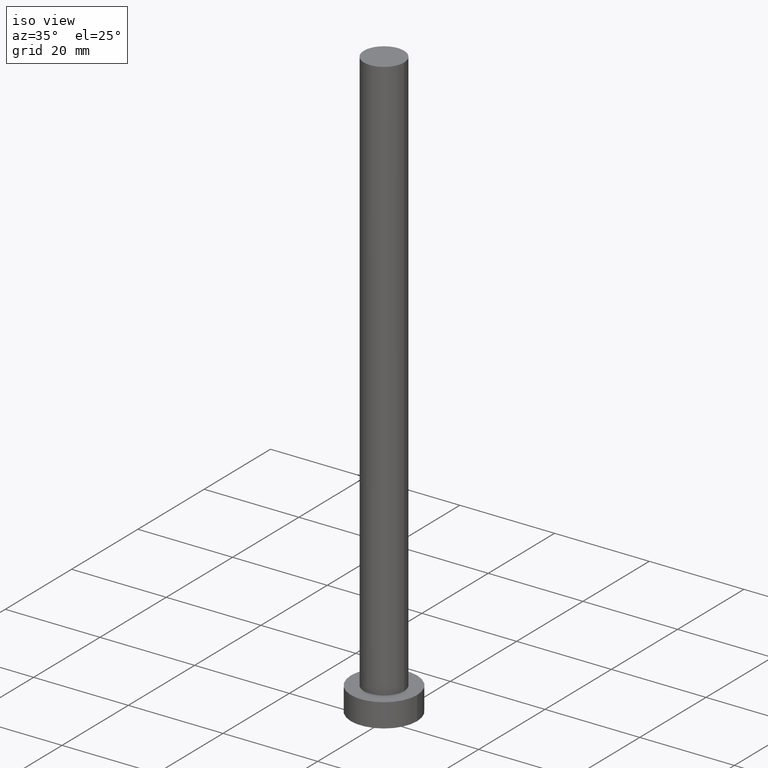
[diagram: clean part render]
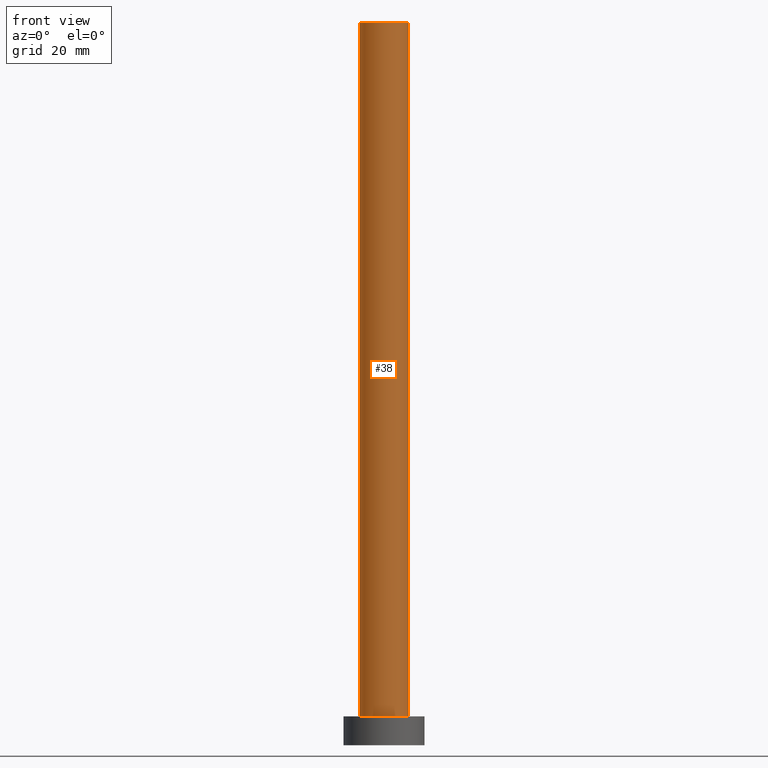
[diagram: tour spotlight — one face highlighted and labeled with its STEP entity id]
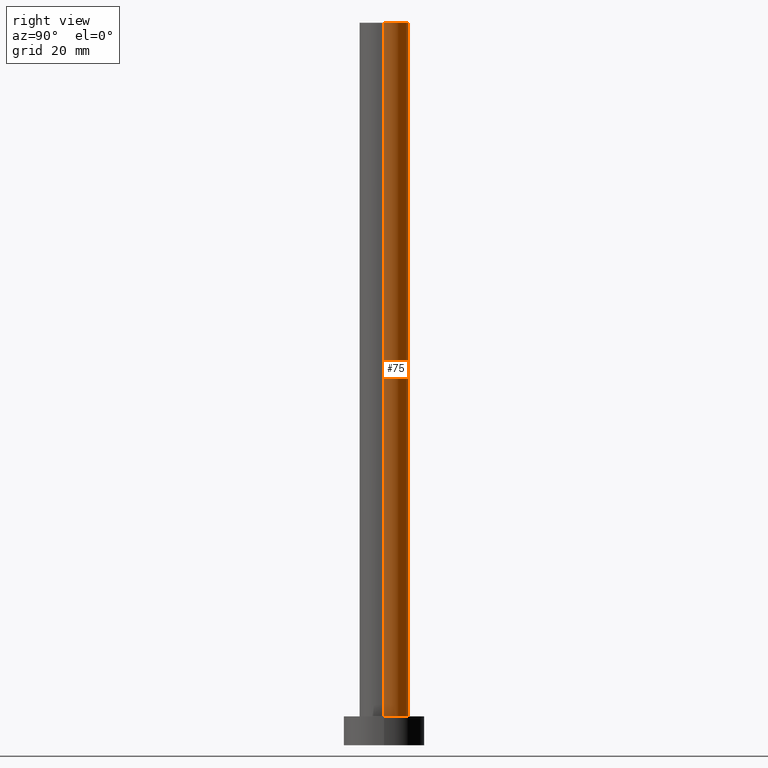
[diagram: tour spotlight — one face highlighted and labeled with its STEP entity id]
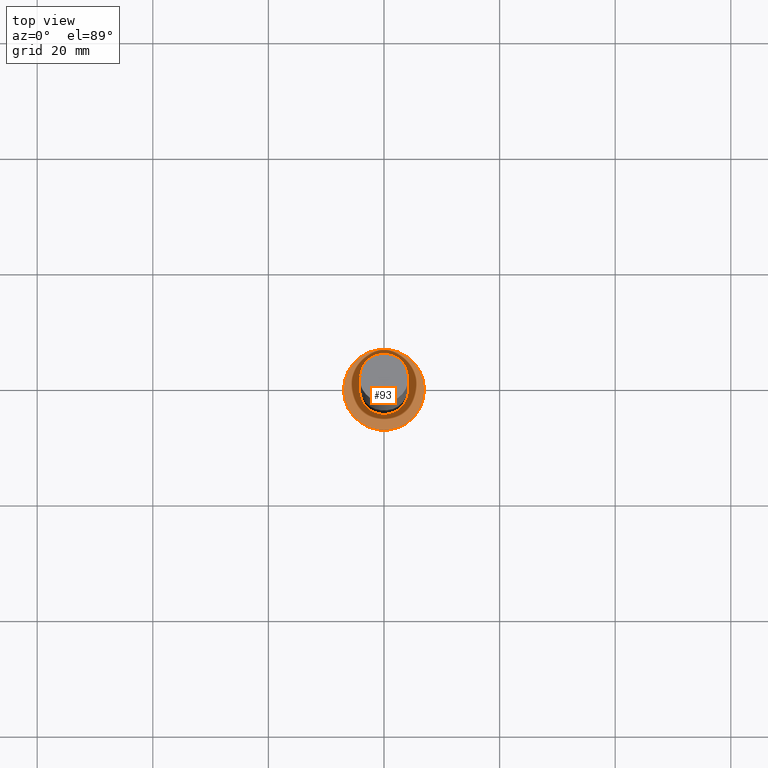
[diagram: tour spotlight — one face highlighted and labeled with its STEP entity id]
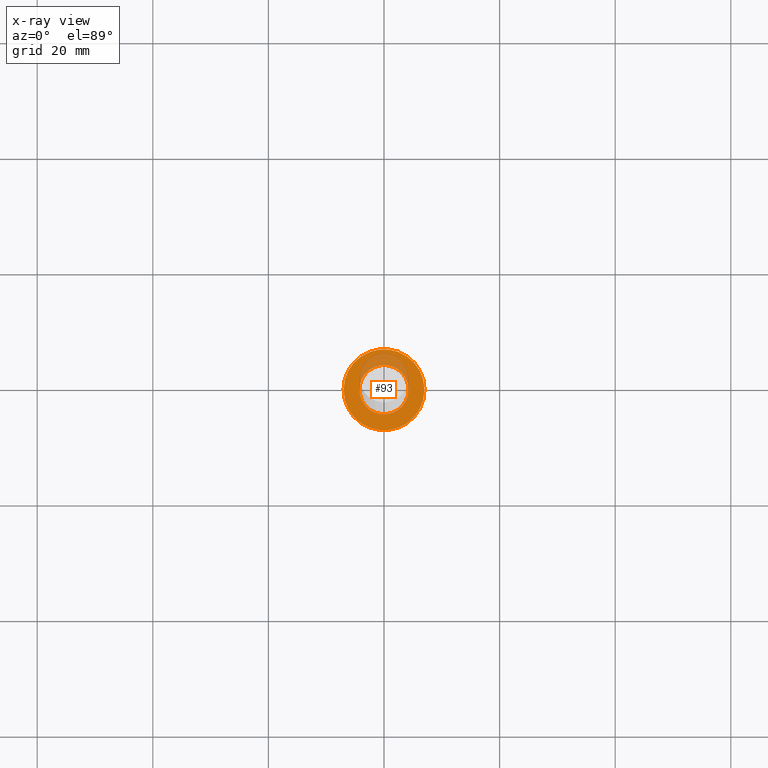
[diagram: x-ray of the same camera — body ghosted, this tour face saturated]
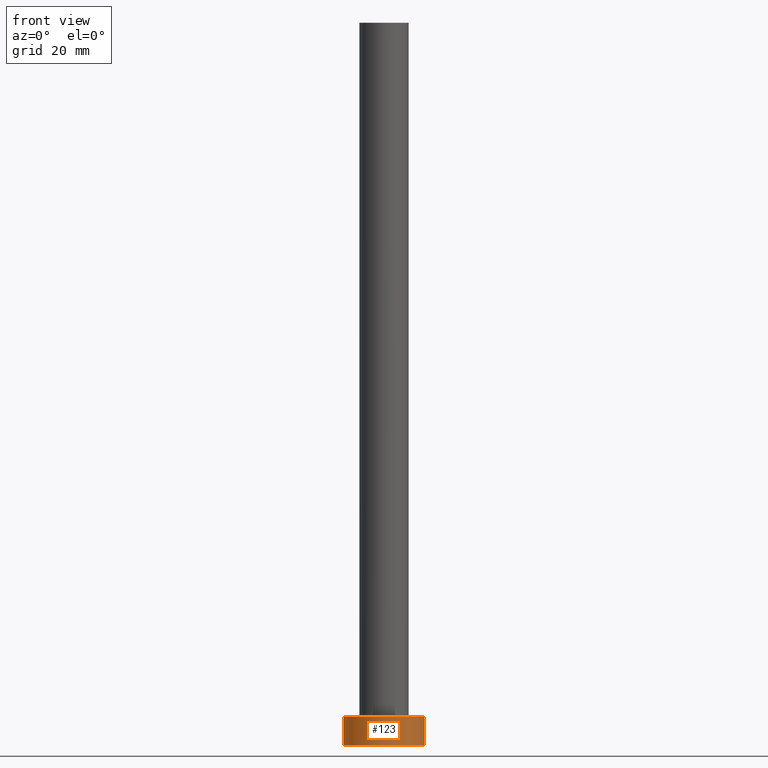
[diagram: tour spotlight — one face highlighted and labeled with its STEP entity id]
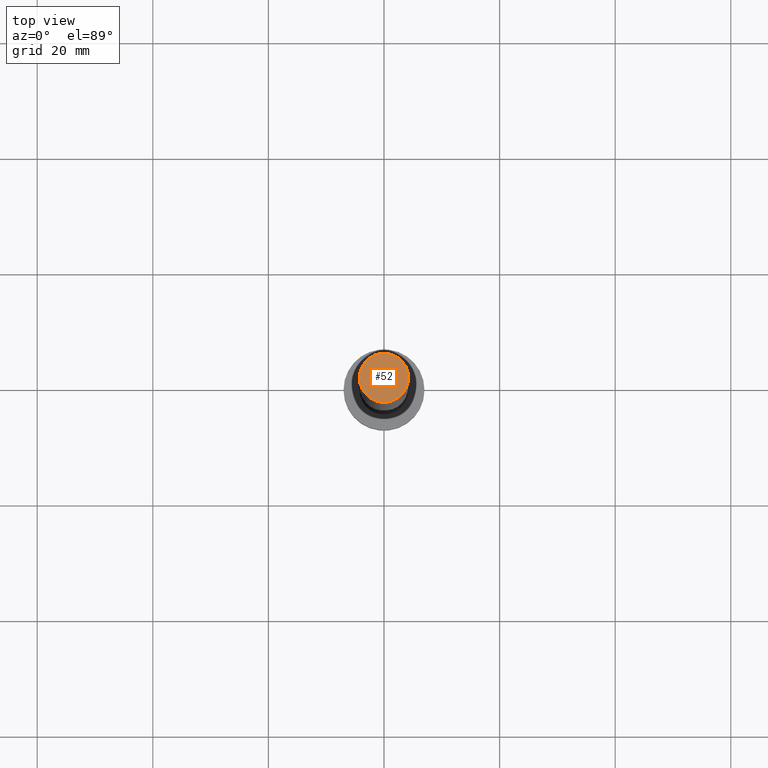
[diagram: tour spotlight — one face highlighted and labeled with its STEP entity id]
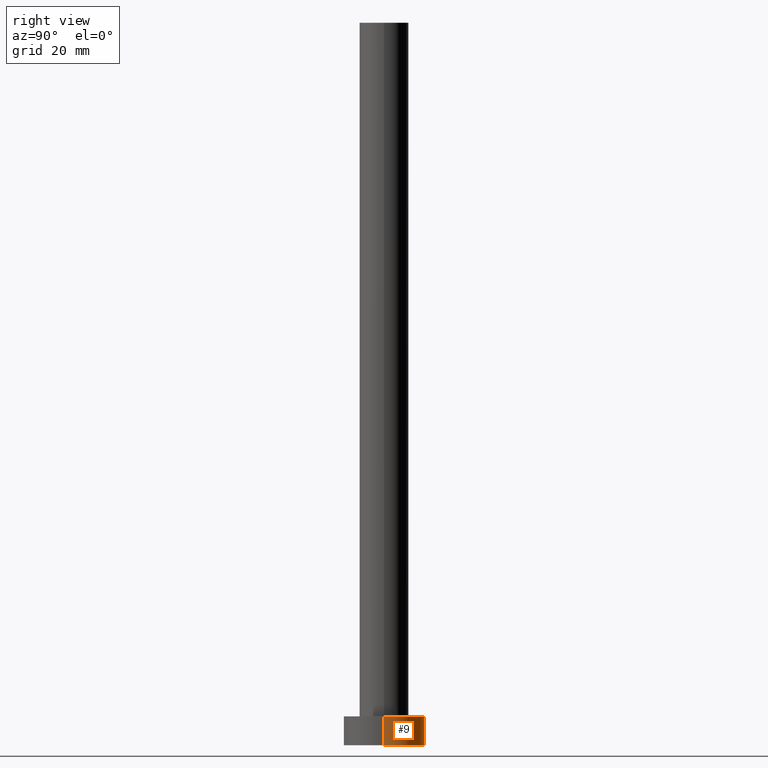
[diagram: tour spotlight — one face highlighted and labeled with its STEP entity id]
A machine part: a face-by-face anatomy tour. The part has 7 B-rep faces; the first image is the clean iso view, then the 6 largest visible faces are spotlighted one at a time (largest first), each with its STEP entity span.

Face 1 — front view, entity #38. In plain terms, the highlighted cylindrical surface (edge-blend (fillet) strip) has radius 4.25 mm, axis along (-0, -0, -1).
Definition (entity closure, byte-faithful):
#3 = EDGE_CURVE ( 'NONE', #116, #118, #183, .T. ) ;
#21 = DIRECTION ( 'NONE',  ( 0.000000000000000000, 0.000000000000000000, 1.000000000000000000 ) ) ;
#24 = CARTESIAN_POINT ( 'NONE',  ( 4.250000000000000000, 5.204748896376250699E-16, 5.000000000000000000 ) ) ;
#38 = ADVANCED_FACE ( 'NONE', ( #95 ), #207, .T. ) ;
#41 = VERTEX_POINT ( 'NONE', #153 ) ;
#43 = ORIENTED_EDGE ( 'NONE', *, *, #247, .T. ) ;
#44 = CARTESIAN_POINT ( 'NONE',  ( 0.000000000000000000, 0.000000000000000000, 5.000000000000000000 ) ) ;
#49 = CARTESIAN_POINT ( 'NONE',  ( -4.250000000000000000, 0.000000000000000000, 125.0000000000000000 ) ) ;
#58 = ORIENTED_EDGE ( 'NONE', *, *, #3, .F. ) ;
#71 = LINE ( 'NONE', #49, #143 ) ;
#78 = DIRECTION ( 'NONE',  ( -0.000000000000000000, -0.000000000000000000, -1.000000000000000000 ) ) ;
#80 = EDGE_CURVE ( 'NONE', #41, #208, #71, .T. ) ;
#85 = ORIENTED_EDGE ( 'NONE', *, *, #80, .T. ) ;
#95 = FACE_OUTER_BOUND ( 'NONE', #225, .T. ) ;
#97 = CARTESIAN_POINT ( 'NONE',  ( 0.000000000000000000, 0.000000000000000000, 125.0000000000000000 ) ) ;
#116 = VERTEX_POINT ( 'NONE', #119 ) ;
#118 = VERTEX_POINT ( 'NONE', #24 ) ;
#119 = CARTESIAN_POINT ( 'NONE',  ( 4.250000000000000000, 5.204748896376250699E-16, 125.0000000000000000 ) ) ;
#132 = AXIS2_PLACEMENT_3D ( 'NONE', #177, #78, #135 ) ;
#135 = DIRECTION ( 'NONE',  ( -1.000000000000000000, 0.000000000000000000, 0.000000000000000000 ) ) ;
#137 = DIRECTION ( 'NONE',  ( 1.000000000000000000, 0.000000000000000000, 0.000000000000000000 ) ) ;
#138 = ORIENTED_EDGE ( 'NONE', *, *, #195, .F. ) ;
#143 = VECTOR ( 'NONE', #162, 1000.000000000000000 ) ;
#153 = CARTESIAN_POINT ( 'NONE',  ( -4.250000000000000000, 0.000000000000000000, 125.0000000000000000 ) ) ;
#162 = DIRECTION ( 'NONE',  ( -0.000000000000000000, -0.000000000000000000, -1.000000000000000000 ) ) ;
#177 = CARTESIAN_POINT ( 'NONE',  ( 0.000000000000000000, 0.000000000000000000, 125.0000000000000000 ) ) ;
#181 = CIRCLE ( 'NONE', #222, 4.250000000000000000 ) ;
#183 = LINE ( 'NONE', #245, #221 ) ;
#191 = DIRECTION ( 'NONE',  ( 1.000000000000000000, 0.000000000000000000, 0.000000000000000000 ) ) ;
#195 = EDGE_CURVE ( 'NONE', #41, #116, #197, .T. ) ;
#197 = CIRCLE ( 'NONE', #209, 4.250000000000000000 ) ;
#207 = CYLINDRICAL_SURFACE ( 'NONE', #132, 4.250000000000000000 ) ;
#208 = VERTEX_POINT ( 'NONE', #229 ) ;
#209 = AXIS2_PLACEMENT_3D ( 'NONE', #97, #21, #137 ) ;
#221 = VECTOR ( 'NONE', #240, 1000.000000000000000 ) ;
#222 = AXIS2_PLACEMENT_3D ( 'NONE', #44, #236, #191 ) ;
#225 = EDGE_LOOP ( 'NONE', ( #58, #138, #85, #43 ) ) ;
#229 = CARTESIAN_POINT ( 'NONE',  ( -4.250000000000000000, 0.000000000000000000, 5.000000000000000000 ) ) ;
#236 = DIRECTION ( 'NONE',  ( 0.000000000000000000, 0.000000000000000000, 1.000000000000000000 ) ) ;
#240 = DIRECTION ( 'NONE',  ( -0.000000000000000000, -0.000000000000000000, -1.000000000000000000 ) ) ;
#245 = CARTESIAN_POINT ( 'NONE',  ( 4.250000000000000000, 5.204748896376250699E-16, 125.0000000000000000 ) ) ;
#247 = EDGE_CURVE ( 'NONE', #208, #118, #181, .T. ) ;

Face 2 — right view, entity #75. In plain terms, the highlighted cylindrical surface (edge-blend (fillet) strip) has radius 4.25 mm, axis along (-0, -0, -1).
Definition (entity closure, byte-faithful):
#3 = EDGE_CURVE ( 'NONE', #116, #118, #183, .T. ) ;
#14 = CARTESIAN_POINT ( 'NONE',  ( 0.000000000000000000, 0.000000000000000000, 125.0000000000000000 ) ) ;
#19 = CIRCLE ( 'NONE', #150, 4.250000000000000000 ) ;
#24 = CARTESIAN_POINT ( 'NONE',  ( 4.250000000000000000, 5.204748896376250699E-16, 5.000000000000000000 ) ) ;
#41 = VERTEX_POINT ( 'NONE', #153 ) ;
#49 = CARTESIAN_POINT ( 'NONE',  ( -4.250000000000000000, 0.000000000000000000, 125.0000000000000000 ) ) ;
#63 = ORIENTED_EDGE ( 'NONE', *, *, #169, .F. ) ;
#66 = EDGE_LOOP ( 'NONE', ( #63, #160, #232, #142 ) ) ;
#71 = LINE ( 'NONE', #49, #143 ) ;
#75 = ADVANCED_FACE ( 'NONE', ( #125 ), #211, .T. ) ;
#80 = EDGE_CURVE ( 'NONE', #41, #208, #71, .T. ) ;
#86 = EDGE_CURVE ( 'NONE', #118, #208, #127, .T. ) ;
#87 = DIRECTION ( 'NONE',  ( -0.000000000000000000, -0.000000000000000000, -1.000000000000000000 ) ) ;
#109 = CARTESIAN_POINT ( 'NONE',  ( 0.000000000000000000, 0.000000000000000000, 5.000000000000000000 ) ) ;
#116 = VERTEX_POINT ( 'NONE', #119 ) ;
#118 = VERTEX_POINT ( 'NONE', #24 ) ;
#119 = CARTESIAN_POINT ( 'NONE',  ( 4.250000000000000000, 5.204748896376250699E-16, 125.0000000000000000 ) ) ;
#125 = FACE_OUTER_BOUND ( 'NONE', #66, .T. ) ;
#127 = CIRCLE ( 'NONE', #147, 4.250000000000000000 ) ;
#142 = ORIENTED_EDGE ( 'NONE', *, *, #80, .F. ) ;
#143 = VECTOR ( 'NONE', #162, 1000.000000000000000 ) ;
#147 = AXIS2_PLACEMENT_3D ( 'NONE', #109, #167, #253 ) ;
#150 = AXIS2_PLACEMENT_3D ( 'NONE', #156, #230, #239 ) ;
#153 = CARTESIAN_POINT ( 'NONE',  ( -4.250000000000000000, 0.000000000000000000, 125.0000000000000000 ) ) ;
#156 = CARTESIAN_POINT ( 'NONE',  ( 0.000000000000000000, 0.000000000000000000, 125.0000000000000000 ) ) ;
#160 = ORIENTED_EDGE ( 'NONE', *, *, #3, .T. ) ;
#162 = DIRECTION ( 'NONE',  ( -0.000000000000000000, -0.000000000000000000, -1.000000000000000000 ) ) ;
#167 = DIRECTION ( 'NONE',  ( 0.000000000000000000, 0.000000000000000000, 1.000000000000000000 ) ) ;
#169 = EDGE_CURVE ( 'NONE', #116, #41, #19, .T. ) ;
#183 = LINE ( 'NONE', #245, #221 ) ;
#194 = DIRECTION ( 'NONE',  ( -1.000000000000000000, 0.000000000000000000, 0.000000000000000000 ) ) ;
#208 = VERTEX_POINT ( 'NONE', #229 ) ;
#211 = CYLINDRICAL_SURFACE ( 'NONE', #217, 4.250000000000000000 ) ;
#217 = AXIS2_PLACEMENT_3D ( 'NONE', #14, #87, #194 ) ;
#221 = VECTOR ( 'NONE', #240, 1000.000000000000000 ) ;
#229 = CARTESIAN_POINT ( 'NONE',  ( -4.250000000000000000, 0.000000000000000000, 5.000000000000000000 ) ) ;
#230 = DIRECTION ( 'NONE',  ( 0.000000000000000000, 0.000000000000000000, 1.000000000000000000 ) ) ;
#232 = ORIENTED_EDGE ( 'NONE', *, *, #86, .T. ) ;
#239 = DIRECTION ( 'NONE',  ( 1.000000000000000000, 0.000000000000000000, 0.000000000000000000 ) ) ;
#240 = DIRECTION ( 'NONE',  ( -0.000000000000000000, -0.000000000000000000, -1.000000000000000000 ) ) ;
#245 = CARTESIAN_POINT ( 'NONE',  ( 4.250000000000000000, 5.204748896376250699E-16, 125.0000000000000000 ) ) ;
#253 = DIRECTION ( 'NONE',  ( 1.000000000000000000, 0.000000000000000000, 0.000000000000000000 ) ) ;

Face 3 — top view, entity #93. An x-ray twin of the same camera follows (body ghosted, this face saturated) — the face is partly hidden behind the body. In plain terms, the highlighted planar face has unit normal (0, 0, 1).
Definition (entity closure, byte-faithful):
#4 = CARTESIAN_POINT ( 'NONE',  ( 0.000000000000000000, 0.000000000000000000, 5.000000000000000000 ) ) ;
#8 = EDGE_LOOP ( 'NONE', ( #154, #141 ) ) ;
#23 = ORIENTED_EDGE ( 'NONE', *, *, #247, .F. ) ;
#24 = CARTESIAN_POINT ( 'NONE',  ( 4.250000000000000000, 5.204748896376250699E-16, 5.000000000000000000 ) ) ;
#29 = FACE_BOUND ( 'NONE', #151, .T. ) ;
#35 = AXIS2_PLACEMENT_3D ( 'NONE', #4, #77, #178 ) ;
#42 = DIRECTION ( 'NONE',  ( 1.000000000000000000, 0.000000000000000000, 0.000000000000000000 ) ) ;
#44 = CARTESIAN_POINT ( 'NONE',  ( 0.000000000000000000, 0.000000000000000000, 5.000000000000000000 ) ) ;
#46 = FACE_OUTER_BOUND ( 'NONE', #8, .T. ) ;
#47 = AXIS2_PLACEMENT_3D ( 'NONE', #175, #62, #224 ) ;
#54 = CIRCLE ( 'NONE', #47, 7.000000000000000000 ) ;
#62 = DIRECTION ( 'NONE',  ( 0.000000000000000000, 0.000000000000000000, 1.000000000000000000 ) ) ;
#72 = AXIS2_PLACEMENT_3D ( 'NONE', #227, #179, #42 ) ;
#77 = DIRECTION ( 'NONE',  ( 0.000000000000000000, 0.000000000000000000, 1.000000000000000000 ) ) ;
#86 = EDGE_CURVE ( 'NONE', #118, #208, #127, .T. ) ;
#93 = ADVANCED_FACE ( 'NONE', ( #29, #46 ), #188, .T. ) ;
#109 = CARTESIAN_POINT ( 'NONE',  ( 0.000000000000000000, 0.000000000000000000, 5.000000000000000000 ) ) ;
#118 = VERTEX_POINT ( 'NONE', #24 ) ;
#127 = CIRCLE ( 'NONE', #147, 4.250000000000000000 ) ;
#141 = ORIENTED_EDGE ( 'NONE', *, *, #203, .T. ) ;
#147 = AXIS2_PLACEMENT_3D ( 'NONE', #109, #167, #253 ) ;
#151 = EDGE_LOOP ( 'NONE', ( #23, #186 ) ) ;
#154 = ORIENTED_EDGE ( 'NONE', *, *, #189, .T. ) ;
#161 = VERTEX_POINT ( 'NONE', #241 ) ;
#164 = CIRCLE ( 'NONE', #72, 7.000000000000000000 ) ;
#167 = DIRECTION ( 'NONE',  ( 0.000000000000000000, 0.000000000000000000, 1.000000000000000000 ) ) ;
#175 = CARTESIAN_POINT ( 'NONE',  ( 0.000000000000000000, 0.000000000000000000, 5.000000000000000000 ) ) ;
#178 = DIRECTION ( 'NONE',  ( 1.000000000000000000, 0.000000000000000000, -0.000000000000000000 ) ) ;
#179 = DIRECTION ( 'NONE',  ( 0.000000000000000000, 0.000000000000000000, 1.000000000000000000 ) ) ;
#181 = CIRCLE ( 'NONE', #222, 4.250000000000000000 ) ;
#186 = ORIENTED_EDGE ( 'NONE', *, *, #86, .F. ) ;
#188 = PLANE ( 'NONE',  #35 ) ;
#189 = EDGE_CURVE ( 'NONE', #161, #242, #54, .T. ) ;
#191 = DIRECTION ( 'NONE',  ( 1.000000000000000000, 0.000000000000000000, 0.000000000000000000 ) ) ;
#203 = EDGE_CURVE ( 'NONE', #242, #161, #164, .T. ) ;
#208 = VERTEX_POINT ( 'NONE', #229 ) ;
#222 = AXIS2_PLACEMENT_3D ( 'NONE', #44, #236, #191 ) ;
#224 = DIRECTION ( 'NONE',  ( 1.000000000000000000, 0.000000000000000000, 0.000000000000000000 ) ) ;
#227 = CARTESIAN_POINT ( 'NONE',  ( 0.000000000000000000, 0.000000000000000000, 5.000000000000000000 ) ) ;
#229 = CARTESIAN_POINT ( 'NONE',  ( -4.250000000000000000, 0.000000000000000000, 5.000000000000000000 ) ) ;
#236 = DIRECTION ( 'NONE',  ( 0.000000000000000000, 0.000000000000000000, 1.000000000000000000 ) ) ;
#241 = CARTESIAN_POINT ( 'NONE',  ( -7.000000000000000000, 0.000000000000000000, 5.000000000000000000 ) ) ;
#242 = VERTEX_POINT ( 'NONE', #250 ) ;
#247 = EDGE_CURVE ( 'NONE', #208, #118, #181, .T. ) ;
#250 = CARTESIAN_POINT ( 'NONE',  ( 7.000000000000000000, 8.572527594031473190E-16, 5.000000000000000000 ) ) ;
#253 = DIRECTION ( 'NONE',  ( 1.000000000000000000, 0.000000000000000000, 0.000000000000000000 ) ) ;

Face 4 — front view, entity #123. In plain terms, the highlighted cylindrical surface (partial cylindrical patch) has radius 7 mm, axis along (-0, -0, -1).
Definition (entity closure, byte-faithful):
#1 = CARTESIAN_POINT ( 'NONE',  ( -7.000000000000000000, 0.000000000000000000, 5.000000000000000000 ) ) ;
#5 = CYLINDRICAL_SURFACE ( 'NONE', #50, 7.000000000000000000 ) ;
#10 = LINE ( 'NONE', #144, #17 ) ;
#17 = VECTOR ( 'NONE', #107, 1000.000000000000000 ) ;
#37 = EDGE_LOOP ( 'NONE', ( #81, #102, #120, #213 ) ) ;
#47 = AXIS2_PLACEMENT_3D ( 'NONE', #175, #62, #224 ) ;
#50 = AXIS2_PLACEMENT_3D ( 'NONE', #159, #133, #182 ) ;
#54 = CIRCLE ( 'NONE', #47, 7.000000000000000000 ) ;
#57 = FACE_OUTER_BOUND ( 'NONE', #37, .T. ) ;
#60 = CARTESIAN_POINT ( 'NONE',  ( 7.000000000000000000, 8.572527594031473190E-16, 0.000000000000000000 ) ) ;
#62 = DIRECTION ( 'NONE',  ( 0.000000000000000000, 0.000000000000000000, 1.000000000000000000 ) ) ;
#64 = DIRECTION ( 'NONE',  ( 0.000000000000000000, 0.000000000000000000, 1.000000000000000000 ) ) ;
#68 = VECTOR ( 'NONE', #206, 1000.000000000000000 ) ;
#79 = CARTESIAN_POINT ( 'NONE',  ( -7.000000000000000000, 0.000000000000000000, 0.000000000000000000 ) ) ;
#81 = ORIENTED_EDGE ( 'NONE', *, *, #238, .F. ) ;
#84 = CARTESIAN_POINT ( 'NONE',  ( 0.000000000000000000, 0.000000000000000000, 0.000000000000000000 ) ) ;
#94 = AXIS2_PLACEMENT_3D ( 'NONE', #84, #64, #140 ) ;
#96 = EDGE_CURVE ( 'NONE', #161, #124, #99, .T. ) ;
#99 = LINE ( 'NONE', #1, #68 ) ;
#102 = ORIENTED_EDGE ( 'NONE', *, *, #189, .F. ) ;
#107 = DIRECTION ( 'NONE',  ( -0.000000000000000000, -0.000000000000000000, -1.000000000000000000 ) ) ;
#120 = ORIENTED_EDGE ( 'NONE', *, *, #96, .T. ) ;
#123 = ADVANCED_FACE ( 'NONE', ( #57 ), #5, .T. ) ;
#124 = VERTEX_POINT ( 'NONE', #79 ) ;
#133 = DIRECTION ( 'NONE',  ( -0.000000000000000000, -0.000000000000000000, -1.000000000000000000 ) ) ;
#140 = DIRECTION ( 'NONE',  ( 1.000000000000000000, 0.000000000000000000, 0.000000000000000000 ) ) ;
#144 = CARTESIAN_POINT ( 'NONE',  ( 7.000000000000000000, 8.572527594031473190E-16, 5.000000000000000000 ) ) ;
#152 = EDGE_CURVE ( 'NONE', #124, #192, #155, .T. ) ;
#155 = CIRCLE ( 'NONE', #94, 7.000000000000000000 ) ;
#159 = CARTESIAN_POINT ( 'NONE',  ( 0.000000000000000000, 0.000000000000000000, 5.000000000000000000 ) ) ;
#161 = VERTEX_POINT ( 'NONE', #241 ) ;
#175 = CARTESIAN_POINT ( 'NONE',  ( 0.000000000000000000, 0.000000000000000000, 5.000000000000000000 ) ) ;
#182 = DIRECTION ( 'NONE',  ( -1.000000000000000000, 0.000000000000000000, 0.000000000000000000 ) ) ;
#189 = EDGE_CURVE ( 'NONE', #161, #242, #54, .T. ) ;
#192 = VERTEX_POINT ( 'NONE', #60 ) ;
#206 = DIRECTION ( 'NONE',  ( -0.000000000000000000, -0.000000000000000000, -1.000000000000000000 ) ) ;
#213 = ORIENTED_EDGE ( 'NONE', *, *, #152, .T. ) ;
#224 = DIRECTION ( 'NONE',  ( 1.000000000000000000, 0.000000000000000000, 0.000000000000000000 ) ) ;
#238 = EDGE_CURVE ( 'NONE', #242, #192, #10, .T. ) ;
#241 = CARTESIAN_POINT ( 'NONE',  ( -7.000000000000000000, 0.000000000000000000, 5.000000000000000000 ) ) ;
#242 = VERTEX_POINT ( 'NONE', #250 ) ;
#250 = CARTESIAN_POINT ( 'NONE',  ( 7.000000000000000000, 8.572527594031473190E-16, 5.000000000000000000 ) ) ;

Face 5 — top view, entity #52. In plain terms, the highlighted planar face has unit normal (0, 0, 1).
Definition (entity closure, byte-faithful):
#19 = CIRCLE ( 'NONE', #150, 4.250000000000000000 ) ;
#21 = DIRECTION ( 'NONE',  ( 0.000000000000000000, 0.000000000000000000, 1.000000000000000000 ) ) ;
#31 = AXIS2_PLACEMENT_3D ( 'NONE', #61, #212, #215 ) ;
#41 = VERTEX_POINT ( 'NONE', #153 ) ;
#52 = ADVANCED_FACE ( 'NONE', ( #98 ), #243, .T. ) ;
#61 = CARTESIAN_POINT ( 'NONE',  ( 0.000000000000000000, 0.000000000000000000, 125.0000000000000000 ) ) ;
#97 = CARTESIAN_POINT ( 'NONE',  ( 0.000000000000000000, 0.000000000000000000, 125.0000000000000000 ) ) ;
#98 = FACE_OUTER_BOUND ( 'NONE', #244, .T. ) ;
#116 = VERTEX_POINT ( 'NONE', #119 ) ;
#119 = CARTESIAN_POINT ( 'NONE',  ( 4.250000000000000000, 5.204748896376250699E-16, 125.0000000000000000 ) ) ;
#137 = DIRECTION ( 'NONE',  ( 1.000000000000000000, 0.000000000000000000, 0.000000000000000000 ) ) ;
#150 = AXIS2_PLACEMENT_3D ( 'NONE', #156, #230, #239 ) ;
#153 = CARTESIAN_POINT ( 'NONE',  ( -4.250000000000000000, 0.000000000000000000, 125.0000000000000000 ) ) ;
#156 = CARTESIAN_POINT ( 'NONE',  ( 0.000000000000000000, 0.000000000000000000, 125.0000000000000000 ) ) ;
#169 = EDGE_CURVE ( 'NONE', #116, #41, #19, .T. ) ;
#195 = EDGE_CURVE ( 'NONE', #41, #116, #197, .T. ) ;
#197 = CIRCLE ( 'NONE', #209, 4.250000000000000000 ) ;
#204 = ORIENTED_EDGE ( 'NONE', *, *, #195, .T. ) ;
#209 = AXIS2_PLACEMENT_3D ( 'NONE', #97, #21, #137 ) ;
#210 = ORIENTED_EDGE ( 'NONE', *, *, #169, .T. ) ;
#212 = DIRECTION ( 'NONE',  ( 0.000000000000000000, 0.000000000000000000, 1.000000000000000000 ) ) ;
#215 = DIRECTION ( 'NONE',  ( 1.000000000000000000, 0.000000000000000000, -0.000000000000000000 ) ) ;
#230 = DIRECTION ( 'NONE',  ( 0.000000000000000000, 0.000000000000000000, 1.000000000000000000 ) ) ;
#239 = DIRECTION ( 'NONE',  ( 1.000000000000000000, 0.000000000000000000, 0.000000000000000000 ) ) ;
#243 = PLANE ( 'NONE',  #31 ) ;
#244 = EDGE_LOOP ( 'NONE', ( #204, #210 ) ) ;

Face 6 — right view, entity #9. In plain terms, the highlighted cylindrical surface (partial cylindrical patch) has radius 7 mm, axis along (-0, -0, -1).
Definition (entity closure, byte-faithful):
#1 = CARTESIAN_POINT ( 'NONE',  ( -7.000000000000000000, 0.000000000000000000, 5.000000000000000000 ) ) ;
#9 = ADVANCED_FACE ( 'NONE', ( #101 ), #25, .T. ) ;
#10 = LINE ( 'NONE', #144, #17 ) ;
#12 = ORIENTED_EDGE ( 'NONE', *, *, #238, .T. ) ;
#17 = VECTOR ( 'NONE', #107, 1000.000000000000000 ) ;
#25 = CYLINDRICAL_SURFACE ( 'NONE', #205, 7.000000000000000000 ) ;
#39 = CARTESIAN_POINT ( 'NONE',  ( 0.000000000000000000, 0.000000000000000000, 0.000000000000000000 ) ) ;
#42 = DIRECTION ( 'NONE',  ( 1.000000000000000000, 0.000000000000000000, 0.000000000000000000 ) ) ;
#56 = DIRECTION ( 'NONE',  ( -1.000000000000000000, 0.000000000000000000, 0.000000000000000000 ) ) ;
#60 = CARTESIAN_POINT ( 'NONE',  ( 7.000000000000000000, 8.572527594031473190E-16, 0.000000000000000000 ) ) ;
#65 = ORIENTED_EDGE ( 'NONE', *, *, #110, .T. ) ;
#68 = VECTOR ( 'NONE', #206, 1000.000000000000000 ) ;
#72 = AXIS2_PLACEMENT_3D ( 'NONE', #227, #179, #42 ) ;
#79 = CARTESIAN_POINT ( 'NONE',  ( -7.000000000000000000, 0.000000000000000000, 0.000000000000000000 ) ) ;
#83 = CARTESIAN_POINT ( 'NONE',  ( 0.000000000000000000, 0.000000000000000000, 5.000000000000000000 ) ) ;
#96 = EDGE_CURVE ( 'NONE', #161, #124, #99, .T. ) ;
#99 = LINE ( 'NONE', #1, #68 ) ;
#100 = AXIS2_PLACEMENT_3D ( 'NONE', #39, #117, #202 ) ;
#101 = FACE_OUTER_BOUND ( 'NONE', #231, .T. ) ;
#107 = DIRECTION ( 'NONE',  ( -0.000000000000000000, -0.000000000000000000, -1.000000000000000000 ) ) ;
#110 = EDGE_CURVE ( 'NONE', #192, #124, #174, .T. ) ;
#117 = DIRECTION ( 'NONE',  ( 0.000000000000000000, 0.000000000000000000, 1.000000000000000000 ) ) ;
#124 = VERTEX_POINT ( 'NONE', #79 ) ;
#144 = CARTESIAN_POINT ( 'NONE',  ( 7.000000000000000000, 8.572527594031473190E-16, 5.000000000000000000 ) ) ;
#157 = DIRECTION ( 'NONE',  ( -0.000000000000000000, -0.000000000000000000, -1.000000000000000000 ) ) ;
#161 = VERTEX_POINT ( 'NONE', #241 ) ;
#164 = CIRCLE ( 'NONE', #72, 7.000000000000000000 ) ;
#174 = CIRCLE ( 'NONE', #100, 7.000000000000000000 ) ;
#179 = DIRECTION ( 'NONE',  ( 0.000000000000000000, 0.000000000000000000, 1.000000000000000000 ) ) ;
#180 = ORIENTED_EDGE ( 'NONE', *, *, #96, .F. ) ;
#192 = VERTEX_POINT ( 'NONE', #60 ) ;
#202 = DIRECTION ( 'NONE',  ( 1.000000000000000000, 0.000000000000000000, 0.000000000000000000 ) ) ;
#203 = EDGE_CURVE ( 'NONE', #242, #161, #164, .T. ) ;
#205 = AXIS2_PLACEMENT_3D ( 'NONE', #83, #157, #56 ) ;
#206 = DIRECTION ( 'NONE',  ( -0.000000000000000000, -0.000000000000000000, -1.000000000000000000 ) ) ;
#227 = CARTESIAN_POINT ( 'NONE',  ( 0.000000000000000000, 0.000000000000000000, 5.000000000000000000 ) ) ;
#231 = EDGE_LOOP ( 'NONE', ( #246, #12, #65, #180 ) ) ;
#238 = EDGE_CURVE ( 'NONE', #242, #192, #10, .T. ) ;
#241 = CARTESIAN_POINT ( 'NONE',  ( -7.000000000000000000, 0.000000000000000000, 5.000000000000000000 ) ) ;
#242 = VERTEX_POINT ( 'NONE', #250 ) ;
#246 = ORIENTED_EDGE ( 'NONE', *, *, #203, .F. ) ;
#250 = CARTESIAN_POINT ( 'NONE',  ( 7.000000000000000000, 8.572527594031473190E-16, 5.000000000000000000 ) ) ;